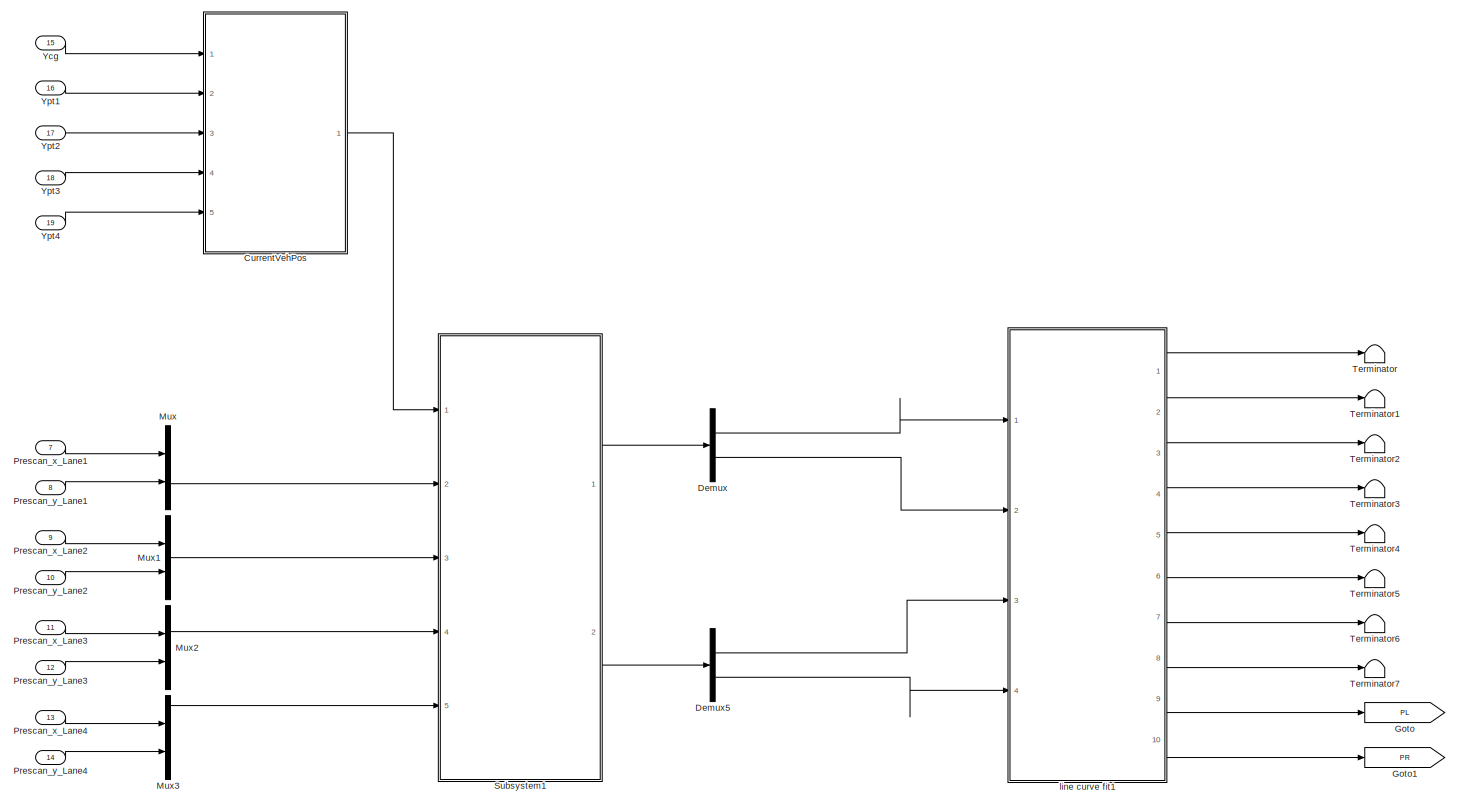
[diagram: root canvas - part 1/2, full width, top band]
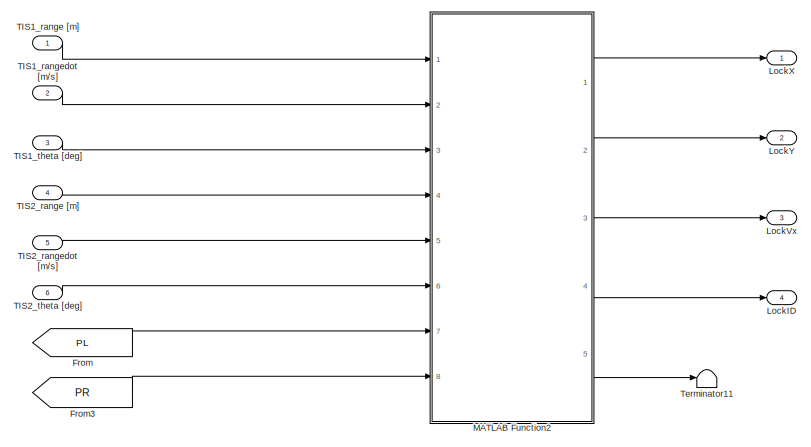
[diagram: root canvas - part 2/2, bottom left region]
MODEL slx_ef1110edb53d
KIND model
CONFIG AbsTol = auto
CONFIG FixedStep = auto
CONFIG MaxStep = auto
CONFIG MinStep = auto
CONFIG RelTol = 1e-3
CONFIG SampleTimeConstraint = Unconstrained
CONFIG Solver = VariableStepAuto
CONFIG SolverMode = Auto
CONFIG SolverName = VariableStepAuto
CONFIG StartTime = 0.0
CONFIG StopTime = 10.0
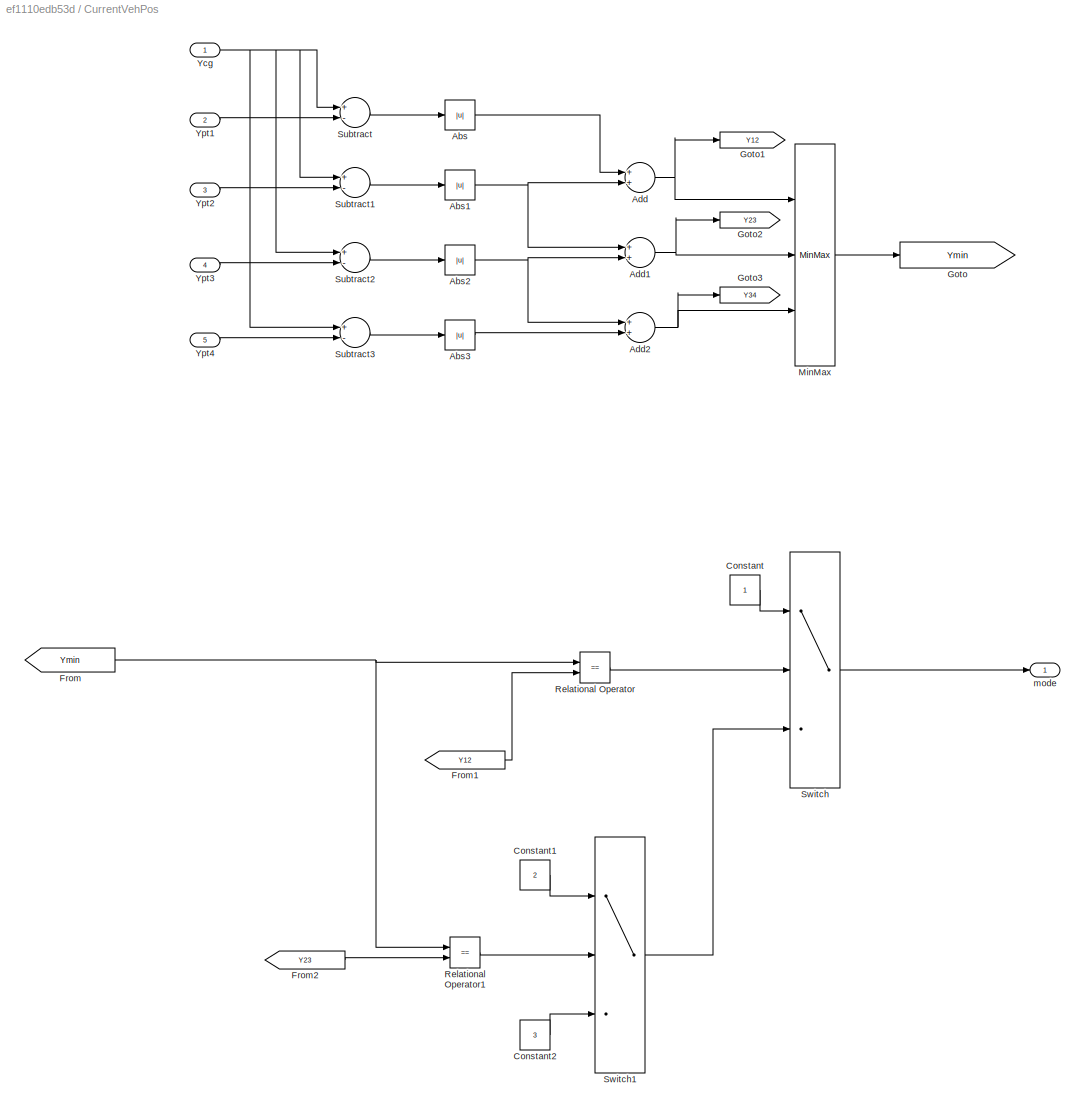
BLOCK [SubSystem] CurrentVehPos
  Ports = [5, 1]
  RequestExecContextInheritance = off
  Variant = off
BLOCK [Abs] CurrentVehPos/Abs
  SaturateOnIntegerOverflow = off
BLOCK [Abs] CurrentVehPos/Abs1
  SaturateOnIntegerOverflow = off
BLOCK [Abs] CurrentVehPos/Abs2
  SaturateOnIntegerOverflow = off
BLOCK [Abs] CurrentVehPos/Abs3
  SaturateOnIntegerOverflow = off
BLOCK [Sum] CurrentVehPos/Add
  InputSameDT = off
  OutDataTypeStr = Inherit: Inherit via internal rule
  Ports = [2, 1]
  SaturateOnIntegerOverflow = off
BLOCK [Sum] CurrentVehPos/Add1
  InputSameDT = off
  OutDataTypeStr = Inherit: Inherit via internal rule
  Ports = [2, 1]
  SaturateOnIntegerOverflow = off
BLOCK [Sum] CurrentVehPos/Add2
  InputSameDT = off
  OutDataTypeStr = Inherit: Inherit via internal rule
  Ports = [2, 1]
  SaturateOnIntegerOverflow = off
BLOCK [Constant] CurrentVehPos/Constant
BLOCK [Constant] CurrentVehPos/Constant1
  Value = 2
BLOCK [Constant] CurrentVehPos/Constant2
  Value = 3
BLOCK [From] CurrentVehPos/From
  GotoTag = Ymin
BLOCK [From] CurrentVehPos/From1
  GotoTag = Y12
BLOCK [From] CurrentVehPos/From2
  GotoTag = Y23
BLOCK [Goto] CurrentVehPos/Goto
  GotoTag = Ymin
BLOCK [Goto] CurrentVehPos/Goto1
  GotoTag = Y12
BLOCK [Goto] CurrentVehPos/Goto2
  GotoTag = Y23
BLOCK [Goto] CurrentVehPos/Goto3
  GotoTag = Y34
BLOCK [MinMax] CurrentVehPos/MinMax
  InputSameDT = off
  Inputs = 3
  Ports = [3, 1]
  SaturateOnIntegerOverflow = off
BLOCK [RelationalOperator] CurrentVehPos/Relational Operator
  InputSameDT = off
  Operator = ==
  OutDataTypeStr = boolean
  Ports = [2, 1]
BLOCK [RelationalOperator] CurrentVehPos/Relational Operator1
  InputSameDT = off
  Operator = ==
  OutDataTypeStr = boolean
  Ports = [2, 1]
BLOCK [Sum] CurrentVehPos/Subtract
  InputSameDT = off
  Inputs = +-
  OutDataTypeStr = Inherit: Inherit via internal rule
  Ports = [2, 1]
  SaturateOnIntegerOverflow = off
BLOCK [Sum] CurrentVehPos/Subtract1
  InputSameDT = off
  Inputs = +-
  OutDataTypeStr = Inherit: Inherit via internal rule
  Ports = [2, 1]
  SaturateOnIntegerOverflow = off
BLOCK [Sum] CurrentVehPos/Subtract2
  InputSameDT = off
  Inputs = +-
  OutDataTypeStr = Inherit: Inherit via internal rule
  Ports = [2, 1]
  SaturateOnIntegerOverflow = off
BLOCK [Sum] CurrentVehPos/Subtract3
  InputSameDT = off
  Inputs = +-
  OutDataTypeStr = Inherit: Inherit via internal rule
  Ports = [2, 1]
  SaturateOnIntegerOverflow = off
BLOCK [Switch] CurrentVehPos/Switch
  Criteria = u2 ~= 0
  InputSameDT = off
  SaturateOnIntegerOverflow = off
BLOCK [Switch] CurrentVehPos/Switch1
  Criteria = u2 ~= 0
  InputSameDT = off
  SaturateOnIntegerOverflow = off
BLOCK [Inport] CurrentVehPos/Ycg
  IconDisplay = Port number
BLOCK [Inport] CurrentVehPos/Ypt1
  IconDisplay = Port number
  Port = 2
BLOCK [Inport] CurrentVehPos/Ypt2
  IconDisplay = Port number
  Port = 3
BLOCK [Inport] CurrentVehPos/Ypt3
  IconDisplay = Port number
  Port = 4
BLOCK [Inport] CurrentVehPos/Ypt4
  IconDisplay = Port number
  Port = 5
BLOCK [Outport] CurrentVehPos/mode
  IconDisplay = Port number
BLOCK [Demux] Demux
  DisplayOption = bar
  Outputs = 2
  Ports = [1, 2]
BLOCK [Demux] Demux5
  DisplayOption = bar
  Outputs = 2
  Ports = [1, 2]
BLOCK [From] From
  GotoTag = PL
BLOCK [From] From3
  GotoTag = PR
BLOCK [Goto] Goto
  GotoTag = PL
BLOCK [Goto] Goto1
  GotoTag = PR
BLOCK [Outport] LockID
  IconDisplay = Port number
  Port = 4
BLOCK [Outport] LockVx
  IconDisplay = Port number
  Port = 3
BLOCK [Outport] LockX
  IconDisplay = Port number
BLOCK [Outport] LockY
  IconDisplay = Port number
  Port = 2
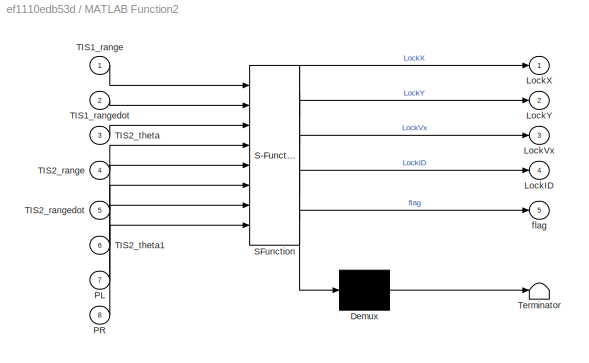
BLOCK [SubSystem] MATLAB Function2
  ErrorFcn = Stateflow.Translate.translate
  PermitHierarchicalResolution = ExplicitOnly
  Ports = [8, 5]
  RequestExecContextInheritance = off
  SFBlockType = MATLAB Function
  TreatAsAtomicUnit = on
  Variant = off
BLOCK [Demux] MATLAB Function2/ Demux 
  Outputs = 1
  Ports = [1, 1]
BLOCK [S-Function] MATLAB Function2/ SFunction 
  EnableBusSupport = off
  FunctionName = sf_sfun
  PortCounts = [8 6]
  Ports = [8, 6]
  SFunctionDeploymentMode = off
  Tag = Stateflow S-Function objselect 4
BLOCK [Terminator] MATLAB Function2/ Terminator 
BLOCK [Outport] MATLAB Function2/LockID
  IconDisplay = Port number
  Port = 4
BLOCK [Outport] MATLAB Function2/LockVx
  IconDisplay = Port number
  Port = 3
BLOCK [Outport] MATLAB Function2/LockX
  IconDisplay = Port number
BLOCK [Outport] MATLAB Function2/LockY
  IconDisplay = Port number
  Port = 2
BLOCK [Inport] MATLAB Function2/PL
  IconDisplay = Port number
  Port = 7
BLOCK [Inport] MATLAB Function2/PR
  IconDisplay = Port number
  Port = 8
BLOCK [Inport] MATLAB Function2/TIS1_range
  IconDisplay = Port number
BLOCK [Inport] MATLAB Function2/TIS1_rangedot
  IconDisplay = Port number
  Port = 2
BLOCK [Inport] MATLAB Function2/TIS2_range
  IconDisplay = Port number
  Port = 4
BLOCK [Inport] MATLAB Function2/TIS2_rangedot
  IconDisplay = Port number
  Port = 5
BLOCK [Inport] MATLAB Function2/TIS2_theta
  IconDisplay = Port number
  Port = 3
BLOCK [Inport] MATLAB Function2/TIS2_theta1
  IconDisplay = Port number
  Port = 6
BLOCK [Outport] MATLAB Function2/flag
  IconDisplay = Port number
  Port = 5
BLOCK [Mux] Mux
  DisplayOption = bar
  Inputs = 2
  Ports = [2, 1]
BLOCK [Mux] Mux1
  DisplayOption = bar
  Inputs = 2
  Ports = [2, 1]
BLOCK [Mux] Mux2
  DisplayOption = bar
  Inputs = 2
  Ports = [2, 1]
BLOCK [Mux] Mux3
  DisplayOption = bar
  Inputs = 2
  Ports = [2, 1]
BLOCK [Inport] Prescan_x_Lane1
  IconDisplay = Port number
  Port = 7
BLOCK [Inport] Prescan_x_Lane2
  IconDisplay = Port number
  Port = 9
BLOCK [Inport] Prescan_x_Lane3
  IconDisplay = Port number
  Port = 11
BLOCK [Inport] Prescan_x_Lane4
  IconDisplay = Port number
  Port = 13
BLOCK [Inport] Prescan_y_Lane1
  IconDisplay = Port number
  Port = 8
BLOCK [Inport] Prescan_y_Lane2
  IconDisplay = Port number
  Port = 10
BLOCK [Inport] Prescan_y_Lane3
  IconDisplay = Port number
  Port = 12
BLOCK [Inport] Prescan_y_Lane4
  IconDisplay = Port number
  Port = 14
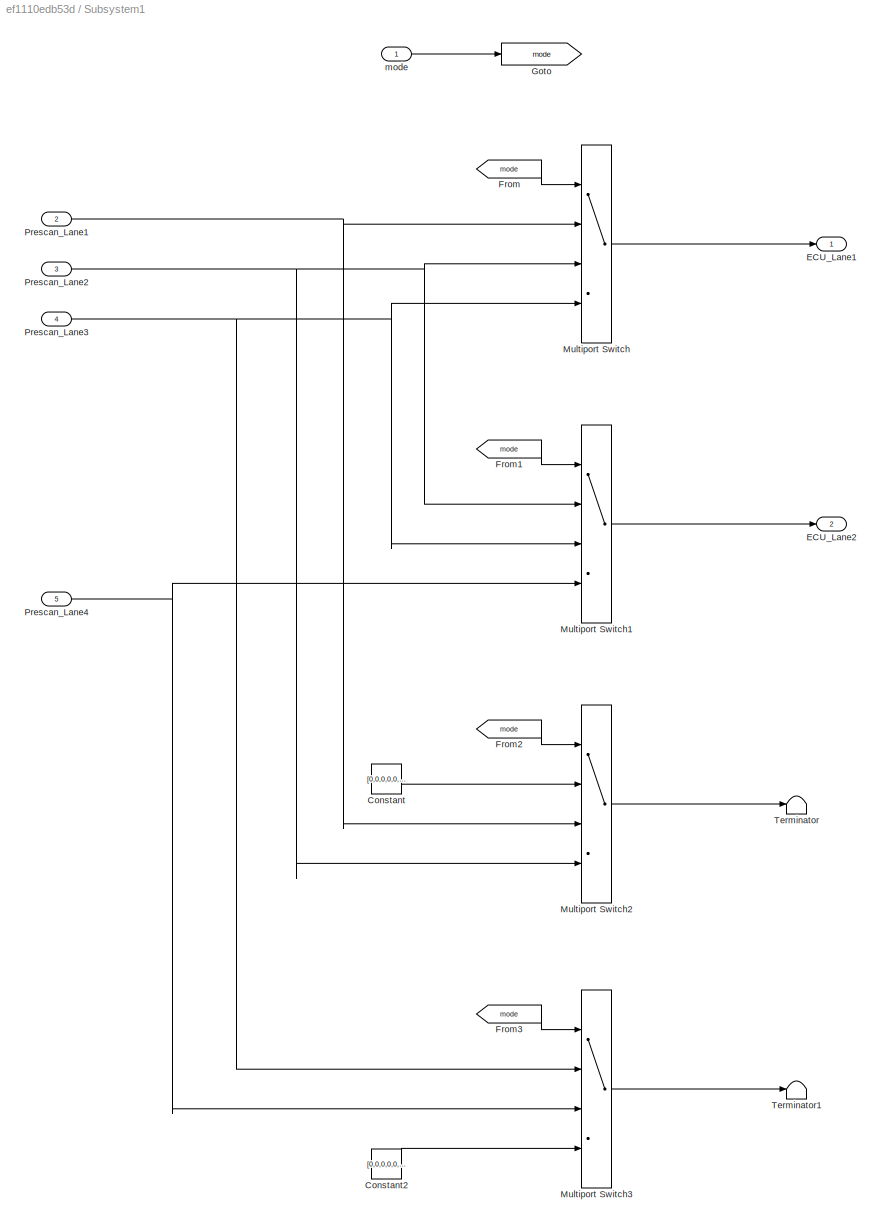
BLOCK [SubSystem] Subsystem1
  Ports = [5, 2]
  RequestExecContextInheritance = off
  Variant = off
BLOCK [Constant] Subsystem1/Constant
  Value = [0,0,0,0,0,0,0,0,0,0,0,0,0,0,0,0,0,0,0,0]'
BLOCK [Constant] Subsystem1/Constant2
  Value = [0,0,0,0,0,0,0,0,0,0,0,0,0,0,0,0,0,0,0,0]'
BLOCK [Outport] Subsystem1/ECU_Lane1
  IconDisplay = Port number
BLOCK [Outport] Subsystem1/ECU_Lane2
  IconDisplay = Port number
  Port = 2
BLOCK [From] Subsystem1/From
  GotoTag = mode
BLOCK [From] Subsystem1/From1
  GotoTag = mode
BLOCK [From] Subsystem1/From2
  GotoTag = mode
BLOCK [From] Subsystem1/From3
  GotoTag = mode
BLOCK [Goto] Subsystem1/Goto
  GotoTag = mode
BLOCK [MultiPortSwitch] Subsystem1/Multiport Switch
  InputSameDT = off
  Ports = [4, 1]
  SaturateOnIntegerOverflow = off
BLOCK [MultiPortSwitch] Subsystem1/Multiport Switch1
  InputSameDT = off
  Ports = [4, 1]
  SaturateOnIntegerOverflow = off
BLOCK [MultiPortSwitch] Subsystem1/Multiport Switch2
  InputSameDT = off
  Ports = [4, 1]
  SaturateOnIntegerOverflow = off
BLOCK [MultiPortSwitch] Subsystem1/Multiport Switch3
  InputSameDT = off
  Ports = [4, 1]
  SaturateOnIntegerOverflow = off
BLOCK [Inport] Subsystem1/Prescan_Lane1
  IconDisplay = Port number
  Port = 2
BLOCK [Inport] Subsystem1/Prescan_Lane2
  IconDisplay = Port number
  Port = 3
BLOCK [Inport] Subsystem1/Prescan_Lane3
  IconDisplay = Port number
  Port = 4
BLOCK [Inport] Subsystem1/Prescan_Lane4
  IconDisplay = Port number
  Port = 5
BLOCK [Terminator] Subsystem1/Terminator
BLOCK [Terminator] Subsystem1/Terminator1
BLOCK [Inport] Subsystem1/mode
  IconDisplay = Port number
BLOCK [Inport] TIS1_range [m]
  IconDisplay = Port number
BLOCK [Inport] TIS1_rangedot [m//s]
  IconDisplay = Port number
  Port = 2
BLOCK [Inport] TIS1_theta [deg]
  IconDisplay = Port number
  Port = 3
BLOCK [Inport] TIS2_range [m]
  IconDisplay = Port number
  Port = 4
BLOCK [Inport] TIS2_rangedot [m//s]
  IconDisplay = Port number
  Port = 5
BLOCK [Inport] TIS2_theta [deg]
  IconDisplay = Port number
  Port = 6
BLOCK [Terminator] Terminator
BLOCK [Terminator] Terminator1
BLOCK [Terminator] Terminator11
BLOCK [Terminator] Terminator2
BLOCK [Terminator] Terminator3
BLOCK [Terminator] Terminator4
BLOCK [Terminator] Terminator5
BLOCK [Terminator] Terminator6
BLOCK [Terminator] Terminator7
BLOCK [Inport] Ycg
  IconDisplay = Port number
  Port = 15
BLOCK [Inport] Ypt1
  IconDisplay = Port number
  Port = 16
BLOCK [Inport] Ypt2
  IconDisplay = Port number
  Port = 17
BLOCK [Inport] Ypt3
  IconDisplay = Port number
  Port = 18
BLOCK [Inport] Ypt4
  IconDisplay = Port number
  Port = 19
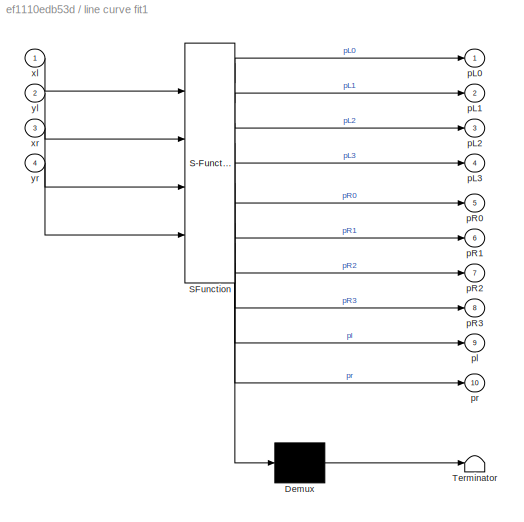
BLOCK [SubSystem] line curve fit1
  ErrorFcn = Stateflow.Translate.translate
  PermitHierarchicalResolution = ExplicitOnly
  Ports = [4, 10]
  RequestExecContextInheritance = off
  SFBlockType = MATLAB Function
  TreatAsAtomicUnit = on
  Variant = off
BLOCK [Demux] line curve fit1/ Demux 
  Outputs = 1
  Ports = [1, 1]
BLOCK [S-Function] line curve fit1/ SFunction 
  EnableBusSupport = on
  FunctionName = sf_sfun
  PortCounts = [4 11]
  Ports = [4, 11]
  SFunctionDeploymentMode = off
  Tag = Stateflow S-Function objselect 1
BLOCK [Terminator] line curve fit1/ Terminator 
BLOCK [Outport] line curve fit1/pL0
  IconDisplay = Port number
BLOCK [Outport] line curve fit1/pL1
  IconDisplay = Port number
  Port = 2
BLOCK [Outport] line curve fit1/pL2
  IconDisplay = Port number
  Port = 3
BLOCK [Outport] line curve fit1/pL3
  IconDisplay = Port number
  Port = 4
BLOCK [Outport] line curve fit1/pR0
  IconDisplay = Port number
  Port = 5
BLOCK [Outport] line curve fit1/pR1
  IconDisplay = Port number
  Port = 6
BLOCK [Outport] line curve fit1/pR2
  IconDisplay = Port number
  Port = 7
BLOCK [Outport] line curve fit1/pR3
  IconDisplay = Port number
  Port = 8
BLOCK [Outport] line curve fit1/pl
  IconDisplay = Port number
  Port = 9
BLOCK [Outport] line curve fit1/pr
  IconDisplay = Port number
  Port = 10
BLOCK [Inport] line curve fit1/xl
  IconDisplay = Port number
BLOCK [Inport] line curve fit1/xr
  IconDisplay = Port number
  Port = 3
BLOCK [Inport] line curve fit1/yl
  IconDisplay = Port number
  Port = 2
BLOCK [Inport] line curve fit1/yr
  IconDisplay = Port number
  Port = 4
NET CurrentVehPos/Abs1:1 -> CurrentVehPos/Add1:1, CurrentVehPos/Add:2
NET CurrentVehPos/Abs2:1 -> CurrentVehPos/Add1:2, CurrentVehPos/Add2:1
LINE CurrentVehPos/Abs3:1 -> CurrentVehPos/Add2:2
LINE CurrentVehPos/Abs:1 -> CurrentVehPos/Add:1
NET CurrentVehPos/Add1:1 -> CurrentVehPos/Goto2:1, CurrentVehPos/MinMax:2
NET CurrentVehPos/Add2:1 -> CurrentVehPos/Goto3:1, CurrentVehPos/MinMax:3
NET CurrentVehPos/Add:1 -> CurrentVehPos/Goto1:1, CurrentVehPos/MinMax:1
LINE CurrentVehPos/Constant1:1 -> CurrentVehPos/Switch1:1
LINE CurrentVehPos/Constant2:1 -> CurrentVehPos/Switch1:3
LINE CurrentVehPos/Constant:1 -> CurrentVehPos/Switch:1
LINE CurrentVehPos/From1:1 -> CurrentVehPos/Relational Operator:2
LINE CurrentVehPos/From2:1 -> CurrentVehPos/Relational Operator1:2
NET CurrentVehPos/From:1 -> CurrentVehPos/Relational Operator1:1, CurrentVehPos/Relational Operator:1
LINE CurrentVehPos/MinMax:1 -> CurrentVehPos/Goto:1
LINE CurrentVehPos/Relational Operator1:1 -> CurrentVehPos/Switch1:2
LINE CurrentVehPos/Relational Operator:1 -> CurrentVehPos/Switch:2
LINE CurrentVehPos/Subtract1:1 -> CurrentVehPos/Abs1:1
LINE CurrentVehPos/Subtract2:1 -> CurrentVehPos/Abs2:1
LINE CurrentVehPos/Subtract3:1 -> CurrentVehPos/Abs3:1
LINE CurrentVehPos/Subtract:1 -> CurrentVehPos/Abs:1
LINE CurrentVehPos/Switch1:1 -> CurrentVehPos/Switch:3
LINE CurrentVehPos/Switch:1 -> CurrentVehPos/mode:1
NET CurrentVehPos/Ycg:1 -> CurrentVehPos/Subtract1:1, CurrentVehPos/Subtract2:1, CurrentVehPos/Subtract3:1, CurrentVehPos/Subtract:1
LINE CurrentVehPos/Ypt1:1 -> CurrentVehPos/Subtract:2
LINE CurrentVehPos/Ypt2:1 -> CurrentVehPos/Subtract1:2
LINE CurrentVehPos/Ypt3:1 -> CurrentVehPos/Subtract2:2
LINE CurrentVehPos/Ypt4:1 -> CurrentVehPos/Subtract3:2
LINE CurrentVehPos:1 -> Subsystem1:1
LINE Demux5:1 -> line curve fit1:3
LINE Demux5:2 -> line curve fit1:4
LINE Demux:1 -> line curve fit1:1
LINE Demux:2 -> line curve fit1:2
LINE From3:1 -> MATLAB Function2:8
LINE From:1 -> MATLAB Function2:7
LINE MATLAB Function2:1 -> LockX:1
LINE MATLAB Function2:2 -> LockY:1
LINE MATLAB Function2:3 -> LockVx:1
LINE MATLAB Function2:4 -> LockID:1
LINE MATLAB Function2:5 -> Terminator11:1
LINE Mux1:1 -> Subsystem1:3
LINE Mux2:1 -> Subsystem1:4
LINE Mux3:1 -> Subsystem1:5
LINE Mux:1 -> Subsystem1:2
LINE Prescan_x_Lane1:1 -> Mux:1
LINE Prescan_x_Lane2:1 -> Mux1:1
LINE Prescan_x_Lane3:1 -> Mux2:1
LINE Prescan_x_Lane4:1 -> Mux3:1
LINE Prescan_y_Lane1:1 -> Mux:2
LINE Prescan_y_Lane2:1 -> Mux1:2
LINE Prescan_y_Lane3:1 -> Mux2:2
LINE Prescan_y_Lane4:1 -> Mux3:2
LINE Subsystem1/Constant2:1 -> Subsystem1/Multiport Switch3:4
LINE Subsystem1/Constant:1 -> Subsystem1/Multiport Switch2:2
LINE Subsystem1/From1:1 -> Subsystem1/Multiport Switch1:1
LINE Subsystem1/From2:1 -> Subsystem1/Multiport Switch2:1
LINE Subsystem1/From3:1 -> Subsystem1/Multiport Switch3:1
LINE Subsystem1/From:1 -> Subsystem1/Multiport Switch:1
LINE Subsystem1/Multiport Switch1:1 -> Subsystem1/ECU_Lane2:1
LINE Subsystem1/Multiport Switch2:1 -> Subsystem1/Terminator:1
LINE Subsystem1/Multiport Switch3:1 -> Subsystem1/Terminator1:1
LINE Subsystem1/Multiport Switch:1 -> Subsystem1/ECU_Lane1:1
NET Subsystem1/Prescan_Lane1:1 -> Subsystem1/Multiport Switch2:3, Subsystem1/Multiport Switch:2
NET Subsystem1/Prescan_Lane2:1 -> Subsystem1/Multiport Switch1:2, Subsystem1/Multiport Switch2:4, Subsystem1/Multiport Switch:3
NET Subsystem1/Prescan_Lane3:1 -> Subsystem1/Multiport Switch1:3, Subsystem1/Multiport Switch3:2, Subsystem1/Multiport Switch:4
NET Subsystem1/Prescan_Lane4:1 -> Subsystem1/Multiport Switch1:4, Subsystem1/Multiport Switch3:3
LINE Subsystem1/mode:1 -> Subsystem1/Goto:1
LINE Subsystem1:1 -> Demux:1
LINE Subsystem1:2 -> Demux5:1
LINE TIS1_range [m]:1 -> MATLAB Function2:1
LINE TIS1_rangedot [m//s]:1 -> MATLAB Function2:2
LINE TIS1_theta [deg]:1 -> MATLAB Function2:3
LINE TIS2_range [m]:1 -> MATLAB Function2:4
LINE TIS2_rangedot [m//s]:1 -> MATLAB Function2:5
LINE TIS2_theta [deg]:1 -> MATLAB Function2:6
LINE Ycg:1 -> CurrentVehPos:1
LINE Ypt1:1 -> CurrentVehPos:2
LINE Ypt2:1 -> CurrentVehPos:3
LINE Ypt3:1 -> CurrentVehPos:4
LINE Ypt4:1 -> CurrentVehPos:5
LINE line curve fit1:1 -> Terminator:1
LINE line curve fit1:10 -> Goto1:1
LINE line curve fit1:2 -> Terminator1:1
LINE line curve fit1:3 -> Terminator2:1
LINE line curve fit1:4 -> Terminator3:1
LINE line curve fit1:5 -> Terminator4:1
LINE line curve fit1:6 -> Terminator5:1
LINE line curve fit1:7 -> Terminator6:1
LINE line curve fit1:8 -> Terminator7:1
LINE line curve fit1:9 -> Goto:1
note: NET lines group one-source signal fan-out (src -> all destinations, sorted); 1:1 wires keep LINE
CHART line curve fit1 states=1 transitions=1
  STATE_LABEL 'eML_blk_kernel()'
  STATE_LABEL 'SCRIPT:\nfunction [pL0,pL1,pL2,pL3,pR0,pR1,pR2,pR3,pl,pr] = fcn(xl,yl,xr,yr)\n%#eml\n% pL3 = 0;\n% pL2 = 0;\n% pL1 = 0;\n% pL0 = 0;\n% pR3 = 0;\n% pR2 = 0;\n% pR1 = 0;\n% pR0 = 0;\n\n[pl,Sl] = polyfit(xl,yl,3);\npL3 = pl(1);\npL2 = pl(2);\npL1 = pl(3);\npL0 = pl(4);\n[pr,Sr] = polyfit(xr,yr,3);\npR3 = pr(1);\npR2 = pr(2);\npR1 = pr(3);\npR0 = pr(4);\n\nif isnan(pL3)\n    pL3 = 0;\n    pL2 = 0;\n    pL1 = 0;\n    pL0 = 0;  \n...<+77ch>'
CHART MATLAB Function2 states=1 transitions=1
  STATE_LABEL 'eML_blk_kernel()'
  STATE_LABEL 'SCRIPT:\nfunction [LockX,LockY,LockVx,LockID,flag] = fcn(TIS1_range,TIS1_rangedot,TIS2_theta,TIS2_range,TIS2_rangedot,TIS2_theta1,PL,PR)\n%#codegen\n\n% if T==3.6\n%     falg=1;\n% end\nTIS_range    = [TIS1_range,TIS2_range];\nTIS_rangedot = [TIS1_rangedot,TIS2_rangedot];\nTIS_theta    = [TIS1_theta,TIS2_theta]*pi()/180;\nobj_x        = TIS_range .* cos(TIS_theta);\nobj_y        = TIS_range .* sin(TIS_theta)...<+924ch>'
